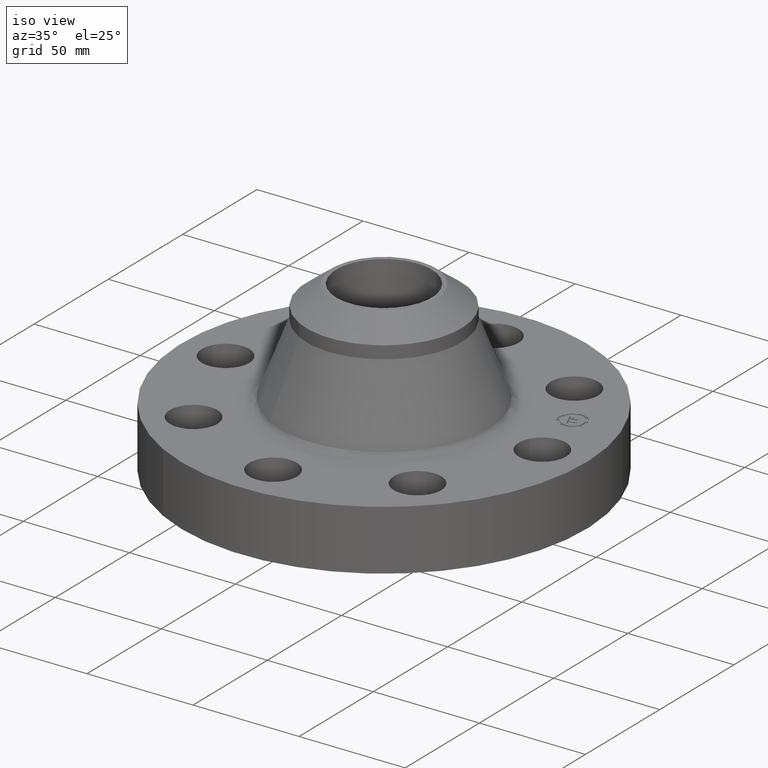
[diagram: clean part render]
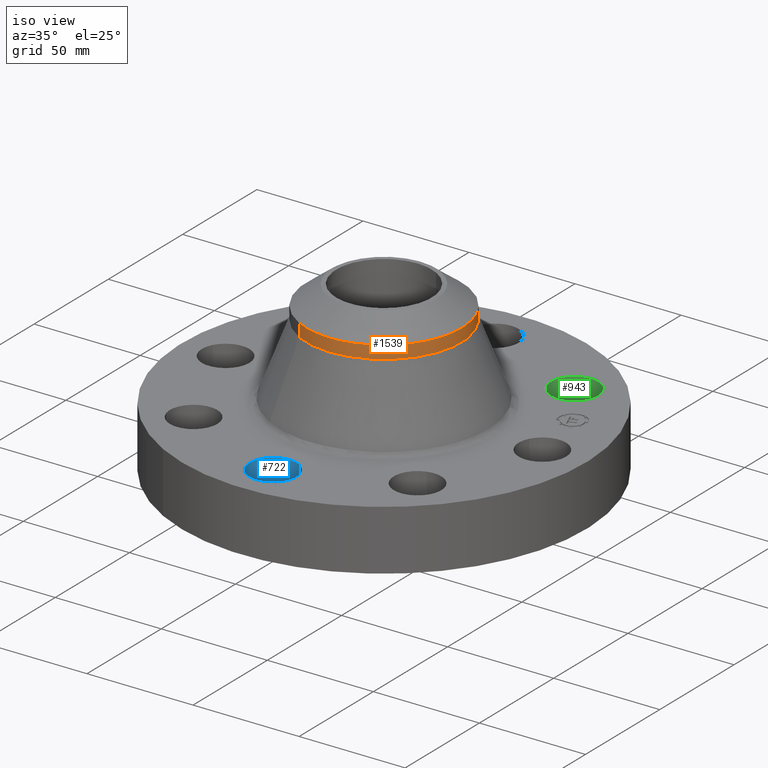
[diagram: same view with three faces highlighted in distinct colors, each labeled with its STEP entity id]
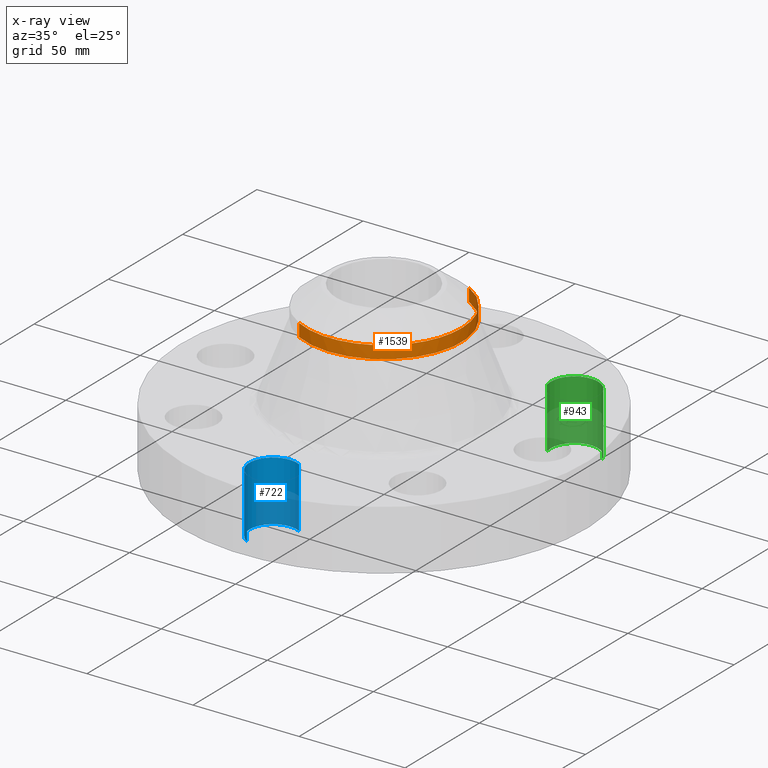
[diagram: x-ray of the same camera — body ghosted, the three highlighted faces saturated]
A machine part, iso view with three faces highlighted in distinct colors.
The next image is the same camera in x-ray (body ghosted, the three faces saturated) — at least one of them is partly hidden behind the body in this view.
Their STEP definitions:

[orange] entity #1539 — the highlighted cylindrical surface (partial cylindrical patch) has radius 36.576 mm, axis along (-0, 0, -1).
#1187=AXIS2_PLACEMENT_3D('Circle Axis2P3D',#1185,#1186,$) ;
#1506=AXIS2_PLACEMENT_3D('Cylinder Axis2P3D',#1503,#1504,#1505) ;
#1529=AXIS2_PLACEMENT_3D('Circle Axis2P3D',#1527,#1528,$) ;
#1151=CARTESIAN_POINT('Vertex',(-0.690372775594,-1.26371888913,2.51871616061)) ;
#1158=CARTESIAN_POINT('Vertex',(0.690372775595,1.26371888913,2.51871616061)) ;
#1185=CARTESIAN_POINT('Axis2P3D Location',(0.,0.,2.51871616061)) ;
#1462=CARTESIAN_POINT('Line Origine',(0.690372775595,1.26371888913,2.63682639686)) ;
#1466=CARTESIAN_POINT('Vertex',(0.690372775595,1.26371888913,2.75493663308)) ;
#1469=CARTESIAN_POINT('Line Origine',(-0.690372775595,-1.26371888913,2.63682639686)) ;
#1473=CARTESIAN_POINT('Vertex',(-0.690372775594,-1.26371888913,2.75493663308)) ;
#1503=CARTESIAN_POINT('Axis2P3D Location',(0.,0.,1.43500000001)) ;
#1509=CARTESIAN_POINT('Control Point',(0.690372775595,1.26371888913,2.75493663305)) ;
#1510=CARTESIAN_POINT('Control Point',(0.825691330054,1.18979402591,2.75493663305)) ;
#1511=CARTESIAN_POINT('Control Point',(0.951115075512,1.0977568363,2.75493663305)) ;
#1512=CARTESIAN_POINT('Control Point',(1.06340845083,0.989369711093,2.75493663305)) ;
#1513=CARTESIAN_POINT('Control Point',(1.25624520292,0.745193897747,2.75493663306)) ;
#1514=CARTESIAN_POINT('Control Point',(1.37807877501,0.458899605991,2.75493663306)) ;
#1515=CARTESIAN_POINT('Control Point',(1.41936111409,0.308389342118,2.75493663306)) ;
#1516=CARTESIAN_POINT('Control Point',(1.46063888593,-8.81872889711E-013,2.75493663306)) ;
#1517=CARTESIAN_POINT('Control Point',(1.41936111409,-0.30838934212,2.75493663307)) ;
#1518=CARTESIAN_POINT('Control Point',(1.37807877501,-0.458899605992,2.75493663307)) ;
#1519=CARTESIAN_POINT('Control Point',(1.25624520292,-0.745193897749,2.75493663307)) ;
#1520=CARTESIAN_POINT('Control Point',(1.06340845082,-0.989369711094,2.75493663307)) ;
#1521=CARTESIAN_POINT('Control Point',(0.951115075511,-1.0977568363,2.75493663307)) ;
#1522=CARTESIAN_POINT('Control Point',(0.825691330052,-1.18979402591,2.75493663307)) ;
#1523=CARTESIAN_POINT('Control Point',(0.690372775594,-1.26371888913,2.75493663308)) ;
#1524=CARTESIAN_POINT('Vertex',(0.690372775594,-1.26371888913,2.75493663305)) ;
#1527=CARTESIAN_POINT('Axis2P3D Location',(0.,0.,2.75493663308)) ;
#1186=DIRECTION('Axis2P3D Direction',(-0.,0.,-0.0393700787402)) ;
#1463=DIRECTION('Vector Direction',(0.,0.,-0.0393700787402)) ;
#1470=DIRECTION('Vector Direction',(0.,0.,-0.0393700787402)) ;
#1504=DIRECTION('Axis2P3D Direction',(-0.,0.,-0.0393700787402)) ;
#1505=DIRECTION('Axis2P3D XDirection',(0.0188750212049,0.0345504945626,0.)) ;
#1528=DIRECTION('Axis2P3D Direction',(-0.,0.,-0.0393700787402)) ;
#1464=VECTOR('Line Direction',#1463,0.0393700787402) ;
#1471=VECTOR('Line Direction',#1470,0.0393700787402) ;
#1533=ORIENTED_EDGE('',*,*,#1475,.F.) ;
#1534=ORIENTED_EDGE('',*,*,#1189,.F.) ;
#1535=ORIENTED_EDGE('',*,*,#1468,.T.) ;
#1536=ORIENTED_EDGE('',*,*,#1526,.F.) ;
#1537=ORIENTED_EDGE('',*,*,#1531,.T.) ;
#1539=ADVANCED_FACE('PartBody',(#1538),#1507,.T.) ;
#1508=B_SPLINE_CURVE_WITH_KNOTS('',5,(#1509,#1510,#1511,#1512,#1513,#1514,#1515,#1516,#1517,#1518,#1519,#1520,#1521,#1522,#1523),.UNSPECIFIED.,.F.,.U.,(6,3,3,3,6),(-39.1654464491,-19.5827232246,0.,19.5827232246,39.1654464491),.UNSPECIFIED.) ;
#1188=CIRCLE('generated circle',#1187,1.44000000001) ;
#1530=CIRCLE('generated circle',#1529,1.44000000001) ;
#1507=CYLINDRICAL_SURFACE('generated cylinder',#1506,1.44000000001) ;
#1189=EDGE_CURVE('',#1159,#1152,#1188,.T.) ;
#1468=EDGE_CURVE('',#1159,#1467,#1465,.F.) ;
#1475=EDGE_CURVE('',#1152,#1474,#1472,.F.) ;
#1526=EDGE_CURVE('',#1525,#1467,#1508,.F.) ;
#1531=EDGE_CURVE('',#1525,#1474,#1530,.T.) ;
#1532=EDGE_LOOP('',(#1533,#1534,#1535,#1536,#1537)) ;
#1538=FACE_OUTER_BOUND('',#1532,.T.) ;
#1465=LINE('Line',#1462,#1464) ;
#1472=LINE('Line',#1469,#1471) ;
#1152=VERTEX_POINT('',#1151) ;
#1159=VERTEX_POINT('',#1158) ;
#1467=VERTEX_POINT('',#1466) ;
#1474=VERTEX_POINT('',#1473) ;
#1525=VERTEX_POINT('',#1524) ;

[blue] entity #722 — the highlighted cylindrical surface (edge-blend (fillet) strip) has radius 11.176 mm, axis along (0, -0, -1).
#210=AXIS2_PLACEMENT_3D('Circle Axis2P3D',#208,#209,$) ;
#380=AXIS2_PLACEMENT_3D('Circle Axis2P3D',#378,#379,$) ;
#714=AXIS2_PLACEMENT_3D('Cylinder Axis2P3D',#711,#712,#713) ;
#203=CARTESIAN_POINT('Vertex',(0.210947237,-2.55386367274,0.)) ;
#205=CARTESIAN_POINT('Vertex',(-0.210947237,-3.32613632724,0.)) ;
#208=CARTESIAN_POINT('Axis2P3D Location',(3.49676543189E-017,-2.93999999999,0.)) ;
#378=CARTESIAN_POINT('Axis2P3D Location',(3.49676543189E-017,-2.94000000002,1.12)) ;
#382=CARTESIAN_POINT('Vertex',(-0.210947236984,-3.32613632724,1.11999999999)) ;
#384=CARTESIAN_POINT('Vertex',(0.210947236987,-2.55386367278,1.11999999999)) ;
#687=CARTESIAN_POINT('Line Origine',(0.210947236987,-2.55386367278,0.56000000001)) ;
#692=CARTESIAN_POINT('Line Origine',(-0.210947236987,-3.32613632724,0.56000000001)) ;
#711=CARTESIAN_POINT('Axis2P3D Location',(-3.79459389627E-016,-2.94000000001,1.11606299213)) ;
#209=DIRECTION('Axis2P3D Direction',(0.,0.,-0.0393700787402)) ;
#379=DIRECTION('Axis2P3D Direction',(0.,0.,-0.0393700787402)) ;
#688=DIRECTION('Vector Direction',(0.,0.,-0.0393700787402)) ;
#693=DIRECTION('Vector Direction',(0.,0.,-0.0393700787402)) ;
#712=DIRECTION('Axis2P3D Direction',(0.,-0.,-0.0393700787402)) ;
#713=DIRECTION('Axis2P3D XDirection',(-0.0188750212049,-0.0345504945626,0.)) ;
#689=VECTOR('Line Direction',#688,0.0393700787402) ;
#694=VECTOR('Line Direction',#693,0.0393700787402) ;
#717=ORIENTED_EDGE('',*,*,#696,.F.) ;
#718=ORIENTED_EDGE('',*,*,#212,.T.) ;
#719=ORIENTED_EDGE('',*,*,#691,.T.) ;
#720=ORIENTED_EDGE('',*,*,#386,.F.) ;
#722=ADVANCED_FACE('PartBody',(#721),#715,.F.) ;
#211=CIRCLE('generated circle',#210,0.44000000002) ;
#381=CIRCLE('generated circle',#380,0.44000000002) ;
#715=CYLINDRICAL_SURFACE('generated cylinder',#714,0.440000000002) ;
#212=EDGE_CURVE('',#206,#204,#211,.T.) ;
#386=EDGE_CURVE('',#383,#385,#381,.T.) ;
#691=EDGE_CURVE('',#204,#385,#690,.F.) ;
#696=EDGE_CURVE('',#206,#383,#695,.F.) ;
#716=EDGE_LOOP('',(#717,#718,#719,#720)) ;
#721=FACE_OUTER_BOUND('',#716,.T.) ;
#690=LINE('Line',#687,#689) ;
#695=LINE('Line',#692,#694) ;
#204=VERTEX_POINT('',#203) ;
#206=VERTEX_POINT('',#205) ;
#383=VERTEX_POINT('',#382) ;
#385=VERTEX_POINT('',#384) ;

[green] entity #943 — the highlighted cylindrical surface (edge-blend (fillet) strip) has radius 11.176 mm, axis along (0, 0, -1).
#291=AXIS2_PLACEMENT_3D('Circle Axis2P3D',#289,#290,$) ;
#479=AXIS2_PLACEMENT_3D('Circle Axis2P3D',#477,#478,$) ;
#925=AXIS2_PLACEMENT_3D('Cylinder Axis2P3D',#922,#923,#924) ;
#289=CARTESIAN_POINT('Axis2P3D Location',(2.0788939367,2.07889393665,0.)) ;
#293=CARTESIAN_POINT('Vertex',(1.65669209947,1.95501654296,0.)) ;
#295=CARTESIAN_POINT('Vertex',(2.5010957739,2.20277133043,0.)) ;
#472=CARTESIAN_POINT('Vertex',(2.5010957739,2.2027713304,1.12)) ;
#474=CARTESIAN_POINT('Vertex',(1.6566920995,1.955016543,1.11999999999)) ;
#477=CARTESIAN_POINT('Axis2P3D Location',(2.07889393669,2.07889393671,1.12)) ;
#922=CARTESIAN_POINT('Axis2P3D Location',(2.0788939367,2.0788939367,1.11606299213)) ;
#927=CARTESIAN_POINT('Line Origine',(1.6566920995,1.955016543,0.56)) ;
#932=CARTESIAN_POINT('Line Origine',(2.5010957739,2.2027713304,0.56)) ;
#290=DIRECTION('Axis2P3D Direction',(0.,0.,-0.0393700787402)) ;
#478=DIRECTION('Axis2P3D Direction',(0.,0.,-0.0393700787402)) ;
#923=DIRECTION('Axis2P3D Direction',(0.,0.,-0.0393700787402)) ;
#924=DIRECTION('Axis2P3D XDirection',(-0.0377775444876,-0.0110842335096,0.)) ;
#928=DIRECTION('Vector Direction',(0.,0.,-0.0393700787402)) ;
#933=DIRECTION('Vector Direction',(0.,0.,-0.0393700787402)) ;
#929=VECTOR('Line Direction',#928,0.0393700787402) ;
#934=VECTOR('Line Direction',#933,0.0393700787402) ;
#938=ORIENTED_EDGE('',*,*,#931,.F.) ;
#939=ORIENTED_EDGE('',*,*,#297,.T.) ;
#940=ORIENTED_EDGE('',*,*,#936,.T.) ;
#941=ORIENTED_EDGE('',*,*,#481,.F.) ;
#943=ADVANCED_FACE('PartBody',(#942),#926,.F.) ;
#292=CIRCLE('generated circle',#291,0.44000000003) ;
#480=CIRCLE('generated circle',#479,0.440000000019) ;
#926=CYLINDRICAL_SURFACE('generated cylinder',#925,0.440000000002) ;
#297=EDGE_CURVE('',#294,#296,#292,.T.) ;
#481=EDGE_CURVE('',#475,#473,#480,.T.) ;
#931=EDGE_CURVE('',#294,#475,#930,.F.) ;
#936=EDGE_CURVE('',#296,#473,#935,.F.) ;
#937=EDGE_LOOP('',(#938,#939,#940,#941)) ;
#942=FACE_OUTER_BOUND('',#937,.T.) ;
#930=LINE('Line',#927,#929) ;
#935=LINE('Line',#932,#934) ;
#294=VERTEX_POINT('',#293) ;
#296=VERTEX_POINT('',#295) ;
#473=VERTEX_POINT('',#472) ;
#475=VERTEX_POINT('',#474) ;